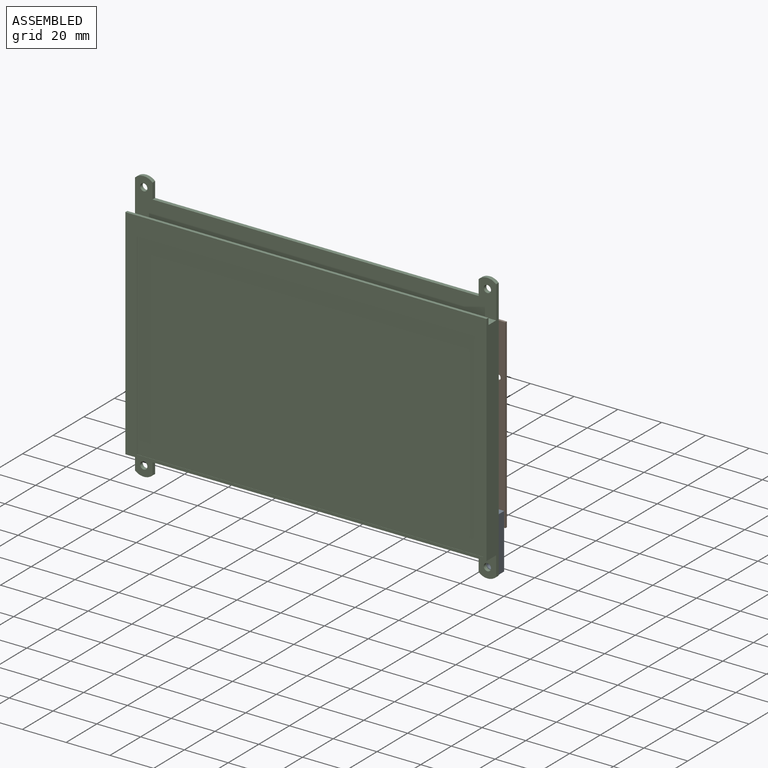
[diagram: assembled view]
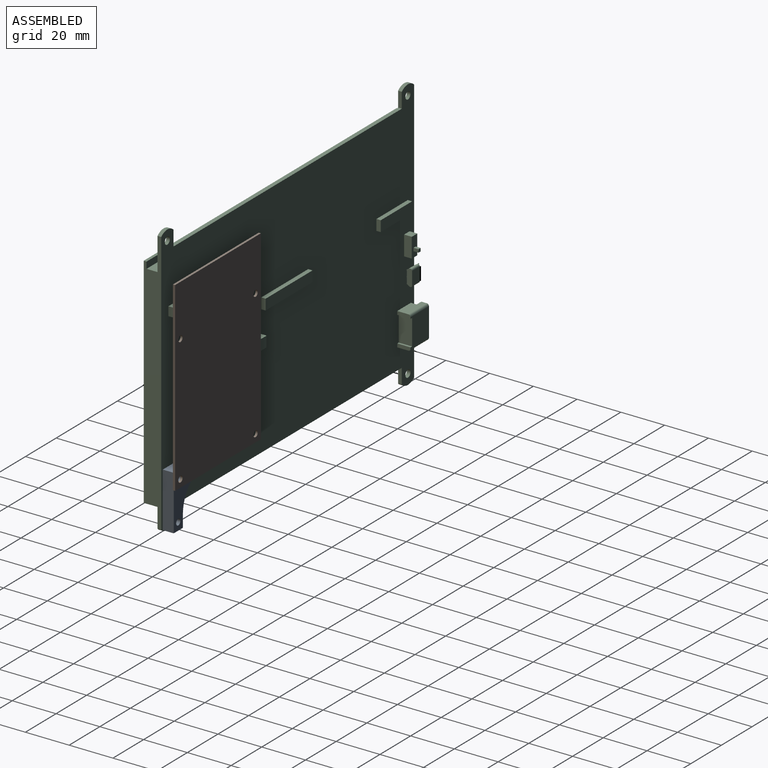
[diagram: assembled view, second angle]
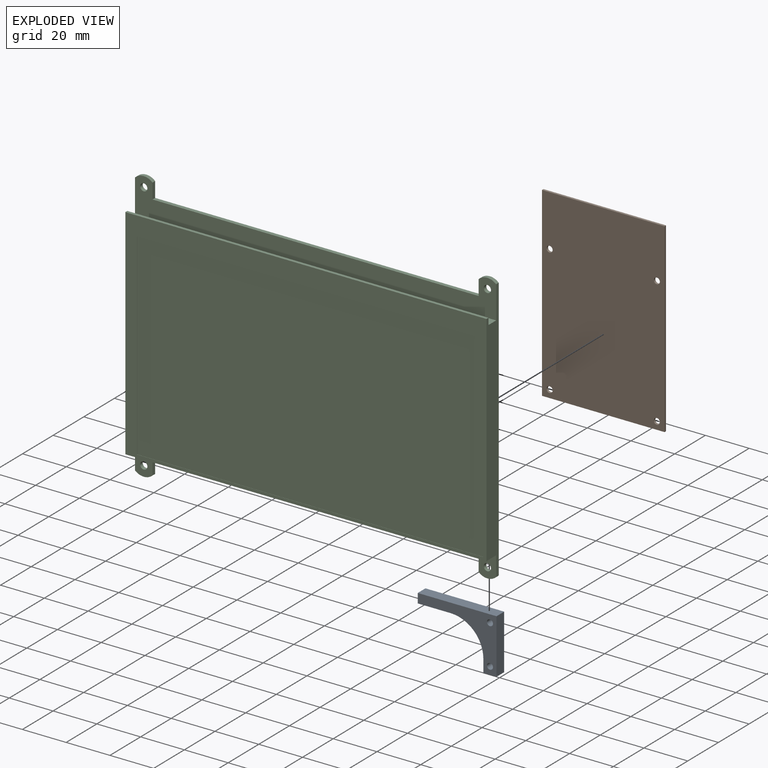
[diagram: exploded view]
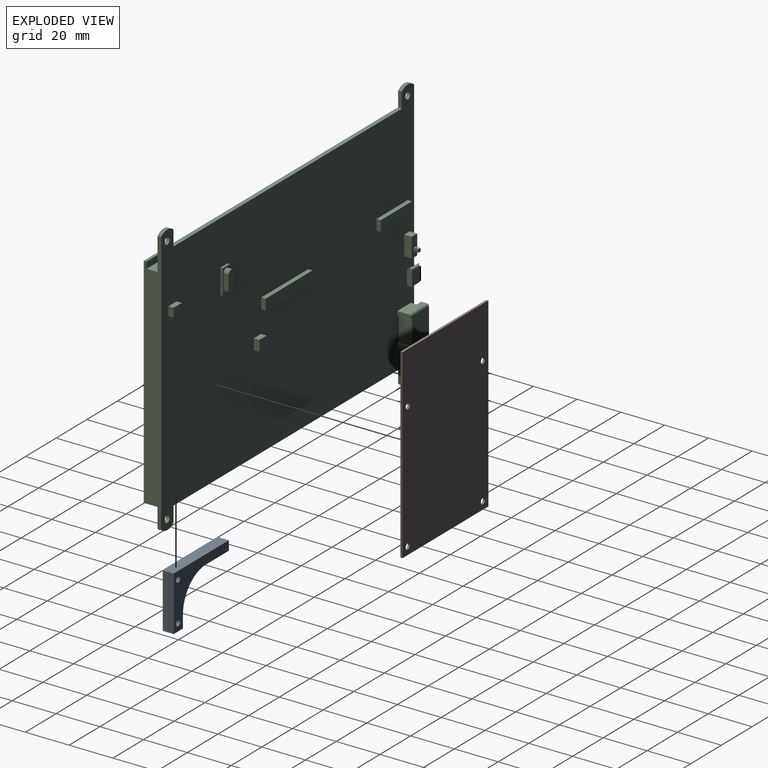
[diagram: exploded view, second angle]
ASSEMBLY  parts=3 mates=2
PART A: 11 faces, bbox 36x5x25 mm
  f0: plane 6x5mm, normal (0,0,-1), area 30mm2, adj f1,f5,f6,f7
  f1: plane 25x5mm, normal (1,0,0), area 125mm2, adj f0,f2,f6,f7
  f2: plane 36x5mm, normal (0,0,1), area 180mm2, adj f1,f6,f7,f9
  f3: cylinder r=1.38mm len=5mm, axis (0,1,0), area 43.2mm2, adj f6,f7
  f4: cylinder r=1.38mm len=5mm, axis (0,1,0), area 43.2mm2, adj f6,f7
  f5: plane 5.68x5mm, normal (-1,0,0), area 28.4mm2, adj f0,f6,f7,f10
  f6: plane 36x25mm, normal (0,-1,0), area 315.9mm2, adj f0,f1,f2,f3,f4,f5,f8,f9
  f7: plane 36x25mm, normal (0,1,0), area 315.9mm2, adj f0,f1,f2,f3,f4,f5,f8,f9
  f8: plane 15x5mm, normal (0,0,-1), area 75mm2, adj f6,f7,f9,f10
  f9: plane 5x4.32mm, normal (-1,0,0), area 21.6mm2, adj f2,f6,f7,f8
  f10: cylinder r=15mm len=15mm, axis (0,-1,0), area 117.8mm2, adj f5,f6,f7,f8
PART B: 10 faces, bbox 85x1x56 mm
  f0: plane 85x1mm, normal (0,0,-1), area 85mm2, adj f1,f3,f4,f5
  f1: plane 56x1mm, normal (1,0,0), area 56mm2, adj f0,f2,f4,f5
  f2: plane 85x1mm, normal (0,0,1), area 85mm2, adj f1,f3,f4,f5
  f3: plane 56x1mm, normal (-1,0,0), area 56mm2, adj f0,f2,f4,f5
  f4: plane 85x56mm, normal (0,1,0), area 4736.2mm2, adj f0,f1,f2,f3,f6,f7,f8,f9
  f5: plane 85x56mm, normal (0,-1,0), area 4736.2mm2, adj f0,f1,f2,f3,f6,f7,f8,f9
  f6: cylinder r=1.38mm len=2.75mm, axis (0,-1,0), area 8.6mm2, adj f4,f5
  f7: cylinder r=1.38mm len=2.75mm, axis (0,-1,0), area 8.6mm2, adj f4,f5
  f8: cylinder r=1.38mm len=2.75mm, axis (0,-1,0), area 8.6mm2, adj f4,f5
  f9: cylinder r=1.38mm len=2.75mm, axis (0,-1,0), area 8.6mm2, adj f4,f5
PART C: 205 faces, bbox 166x14.1x124.2 mm
  f0: plane 6x0.48mm, normal (-0.5,-0.86,0), area 3.4mm2, adj f1,f6,f7,f8
  f1: cylinder r=0.5mm len=6.01mm, axis (0,0,-1), area 1.6mm2, adj f0,f5,f6,f8,f12
  f2: plane 3.55x0.6mm, normal (-1,0,0), area 2.1mm2, adj f13,f14,f15,f16
  f3: plane 10x3.5mm, normal (0,1,0), area 32.4mm2, adj f20,f21,f22,f23
  f4: plane 1.4x1.4mm, normal (0,1,0), area 2mm2, adj f24,f25,f26,f27
  f5: plane 0.17x0.09mm, normal (0,-1,0), area 0mm2, adj f1,f11,f28
  f6: plane 0.61x0.54mm, normal (0,0,1), area 0.2mm2, adj f0,f1,f7,f28,f29
  f7: plane 6x0.19mm, normal (-0.86,0.5,0), area 1.3mm2, adj f0,f6,f8,f29
  f8: plane 0.61x0.54mm, normal (0,0,-1), area 0.2mm2, adj f0,f1,f7,f29,f30
  f9: plane 0.6x0.54mm, normal (0,1,0), area 0.2mm2, adj f28,f32,f33,f34
  f10: plane 4.5x0.22mm, normal (0,0,-1), area 1mm2, adj f11,f31,f32,f37
  f11: cylinder r=0.4mm len=4.5mm, axis (-1,0,0), area 2.9mm2, adj f5,f10,f12,f28,f32,f37
  f12: plane 6.14x4.54mm, normal (0,-1,0), area 26.6mm2, adj f1,f11,f17,f30,f37
  f13: plane 3.55x3.5mm, normal (0,1,0), area 12.4mm2, adj f2,f14,f16,f37
  f14: plane 3.5x0.6mm, normal (0,0,1), area 2.1mm2, adj f2,f13,f15,f37
  f15: plane 3.55x3.5mm, normal (0,-1,0), area 12.4mm2, adj f2,f14,f16,f37
  f16: plane 3.5x0.6mm, normal (0,0,-1), area 2.1mm2, adj f2,f13,f15,f37
  f17: cylinder r=0.4mm len=4.5mm, axis (-1,0,0), area 2.8mm2, adj f12,f30,f36,f37,f39
  f18: plane 0.6x0.54mm, normal (0,1,0), area 0.2mm2, adj f30,f38,f39,f40
  f19: plane 14.2x5.3mm, normal (-1,0,0), area 68.6mm2, adj f42,f43,f44,f45,f46,f47,f48,f49
  f20: cylinder r=1.75mm len=3.5mm, axis (0,-1,0), area 12.6mm2, adj f3,f21,f23,f71
  f21: plane 6.5x2.3mm, normal (-1,0,0), area 14.9mm2, adj f3,f20,f22,f71
  f22: cylinder r=1.75mm len=3.5mm, axis (0,1,0), area 12.6mm2, adj f3,f21,f23,f71
  f23: plane 6.5x2.3mm, normal (1,0,0), area 14.9mm2, adj f3,f20,f22,f71
  f24: plane 2.3x1.4mm, normal (0,0,-1), area 3.2mm2, adj f4,f25,f27,f75
  f25: plane 2.3x1.4mm, normal (1,0,0), area 3.2mm2, adj f4,f24,f26,f75
  f26: plane 2.3x1.4mm, normal (0,0,1), area 3.2mm2, adj f4,f25,f27,f75
  f27: plane 2.3x1.4mm, normal (-1,0,0), area 3.2mm2, adj f4,f24,f26,f75
  f28: plane 0.75x0.64mm, normal (-1,0,0), area 0.3mm2, adj f5,f6,f9,f11,f78,f79
  f29: plane 6x0.49mm, normal (0.45,0.89,0), area 3.3mm2, adj f6,f7,f8,f79
  f30: plane 0.75x0.64mm, normal (-1,0,0), area 0.2mm2, adj f8,f12,f17,f18,f79,f80
  f31: cylinder r=0.6mm len=4.5mm, axis (-1,0,0), area 1.6mm2, adj f10,f32,f37,f83,f188
  f32: plane 0.63x0.41mm, normal (-0.45,0,-0.89), area 0.3mm2, adj f9,f10,f11,f31,f34,f87
  f33: plane 0.5x0.41mm, normal (0.45,0,0.89), area 0.2mm2, adj f9,f34,f77,f78,f86,f87
  f34: plane 0.4x0.24mm, normal (-0.89,0,0.45), area 0.1mm2, adj f9,f32,f33,f87
  f35: plane 4.7x0.6mm, normal (-0.5,0.86,0), area 3.3mm2, adj f88,f89,f91,f92
  f36: plane 4.5x0.24mm, normal (0,0,1), area 1.1mm2, adj f17,f37,f39,f95
  f37: plane 6.9x1.86mm, normal (-1,0,0), area 9.8mm2, adj f10,f11,f12,f13,f14,f15,f16,f17
  f38: plane 0.5x0.41mm, normal (0.45,0,-0.89), area 0.2mm2, adj f18,f40,f80,f81,f90,f96
  f39: plane 0.62x0.41mm, normal (-0.45,0,0.89), area 0.3mm2, adj f17,f18,f36,f40,f95,f96
  f40: plane 0.4x0.24mm, normal (-0.89,0,-0.45), area 0.1mm2, adj f18,f38,f39,f96
  f41: plane 0.75x0.3mm, normal (0,-1,0), area 0.2mm2, adj f98,f99,f100,f101
  f42: plane 8.82x5mm, normal (0,1,0), area 44.1mm2, adj f19,f43,f57,f102
  f43: cylinder r=0.6mm len=5mm, axis (-1,0,0), area 2.7mm2, adj f19,f42,f44,f102
  f44: plane 5x1.22mm, normal (0,0.61,0.79), area 7.7mm2, adj f19,f43,f45,f102
  f45: cylinder r=1.4mm len=5mm, axis (-1,0,0), area 3.8mm2, adj f19,f44,f46,f102
  f46: plane 5x0.3mm, normal (0,0.93,0.37), area 1.6mm2, adj f19,f45,f47,f102
  f47: cylinder r=0.6mm len=5mm, axis (-1,0,0), area 3.6mm2, adj f19,f46,f48,f102
  f48: plane 5x2.12mm, normal (0,0,1), area 10.6mm2, adj f19,f47,f49,f102
  f49: cylinder r=0.6mm len=5mm, axis (-1,0,0), area 4.7mm2, adj f19,f48,f50,f102
  f50: plane 13x5mm, normal (0,-1,0), area 65mm2, adj f19,f49,f51,f102
  f51: cylinder r=0.6mm len=5mm, axis (-1,0,0), area 4.7mm2, adj f19,f50,f52,f102
  f52: plane 5x2.12mm, normal (0,0,-1), area 10.6mm2, adj f19,f51,f53,f102
  f53: cylinder r=0.6mm len=5mm, axis (-1,0,0), area 3.6mm2, adj f19,f52,f54,f102
  f54: plane 5x0.3mm, normal (0,0.93,-0.37), area 1.6mm2, adj f19,f53,f55,f102
  f55: cylinder r=1.4mm len=5mm, axis (-1,0,0), area 3.8mm2, adj f19,f54,f56,f102
  f56: plane 5x1.22mm, normal (0,0.61,-0.79), area 7.7mm2, adj f19,f55,f57,f102
  f57: cylinder r=0.6mm len=5mm, axis (-1,0,0), area 2.7mm2, adj f19,f42,f56,f102
  f58: plane 158x90mm, normal (0,-1,0), area 14220mm2, adj f103,f104,f105,f106
  f59: plane 3.1x0.3mm, normal (0,-0.93,0.37), area 1mm2, adj f61,f62,f102,f108
  f60: plane 3.1x1.22mm, normal (0,-0.61,0.79), area 4.8mm2, adj f61,f102,f107,f108
  f61: cylinder r=1mm len=3.1mm, axis (-1,0,0), area 1.7mm2, adj f59,f60,f102,f108
  f62: cylinder r=1mm len=3.1mm, axis (1,0,0), area 3.7mm2, adj f59,f102,f108,f109
  f63: cylinder r=1mm len=12mm, axis (1,0,0), area 18.8mm2, adj f64,f102,f109,f110
  f64: plane 13x12mm, normal (0,1,0), area 144.2mm2, adj f63,f65,f102,f110,f111,f112,f113,f114
  f65: cylinder r=1mm len=12mm, axis (-1,0,0), area 18.8mm2, adj f64,f102,f114,f115
  f66: cylinder r=1mm len=3.1mm, axis (-1,0,0), area 3.7mm2, adj f67,f102,f115,f116
  f67: plane 3.1x0.3mm, normal (0,-0.93,-0.37), area 1mm2, adj f66,f68,f102,f116
  f68: cylinder r=1mm len=3.1mm, axis (-1,0,0), area 1.7mm2, adj f67,f69,f102,f116
  f69: plane 3.1x1.22mm, normal (0,-0.61,-0.79), area 4.8mm2, adj f68,f102,f116,f117
  f70: plane 5.3x4.1mm, normal (0,1,0), area 21.7mm2, adj f134,f135,f136,f137
  f71: plane 11.4x4.6mm, normal (0,1,0), area 20.1mm2, adj f20,f21,f22,f23,f138,f139,f140,f141
  f72: plane 4.9x4.7mm, normal (0,1,0), area 23mm2, adj f142,f143,f144,f145
  f73: plane 30.6x4.9mm, normal (0,1,0), area 149.9mm2, adj f146,f147,f148,f149
  f74: plane 20.5x4.9mm, normal (0,1,0), area 100.4mm2, adj f150,f151,f152,f153
  f75: plane 9x3.6mm, normal (0,1,0), area 30.4mm2, adj f24,f25,f26,f27,f154,f155,f156,f157
  f76: plane 1.2x0.1mm, normal (0,0,1), area 0.1mm2, adj f82,f127,f179,f191,f202
  f77: plane 5x0.22mm, normal (0,0,1), area 1.1mm2, adj f33,f78,f86,f179
  f78: cylinder r=0.7mm len=5mm, axis (-1,0,0), area 5.5mm2, adj f28,f33,f77,f79,f179
  f79: plane 6.1x5mm, normal (0,1,0), area 30.5mm2, adj f28,f29,f30,f78,f80,f179
  f80: cylinder r=0.7mm len=5mm, axis (-1,0,0), area 5.5mm2, adj f30,f38,f79,f81,f179
  f81: plane 5x0.24mm, normal (0,0,-1), area 1.2mm2, adj f38,f80,f90,f179
  f82: plane 4.8x1.2mm, normal (0,-1,0), area 4.8mm2, adj f76,f127,f158,f159,f160,f161,f162,f163
  f83: plane 4.5x0.64mm, normal (0,0.56,-0.83), area 3.5mm2, adj f31,f37,f84,f188
  f84: cylinder r=0.6mm len=4.5mm, axis (-1,0,0), area 2.6mm2, adj f37,f83,f92,f188
  f85: plane 5x0.64mm, normal (0,-0.56,0.83), area 3.8mm2, adj f86,f179,f187,f188
  f86: cylinder r=0.9mm len=5mm, axis (-1,0,0), area 2.7mm2, adj f33,f77,f85,f179,f188
  f87: plane 0.6x0.55mm, normal (0,-1,0), area 0.2mm2, adj f32,f33,f34,f188
  f88: plane 4.7x0.2mm, normal (-0.86,-0.5,0), area 1.1mm2, adj f35,f89,f91,f189
  f89: plane 0.6x0.55mm, normal (0,0,1), area 0.2mm2, adj f35,f88,f188,f189
  f90: cylinder r=0.9mm len=5mm, axis (-1,0,0), area 2.7mm2, adj f38,f81,f97,f179,f190
  f91: plane 0.6x0.55mm, normal (0,0,-1), area 0.2mm2, adj f35,f88,f189,f190
  f92: plane 4.86x4.5mm, normal (0,1,0), area 21.8mm2, adj f35,f37,f84,f93,f188,f190
  f93: cylinder r=0.6mm len=4.5mm, axis (-1,0,0), area 2.6mm2, adj f37,f92,f94,f190
  f94: plane 4.5x0.62mm, normal (0,0.56,0.83), area 3.3mm2, adj f37,f93,f95,f190
  f95: cylinder r=0.6mm len=4.5mm, axis (-1,0,0), area 1.6mm2, adj f36,f37,f39,f94,f190
  f96: plane 0.61x0.55mm, normal (0,-1,0), area 0.2mm2, adj f38,f39,f40,f190
  f97: plane 5x0.62mm, normal (0,-0.56,-0.83), area 3.7mm2, adj f90,f179,f190,f191
  f98: plane 0.75x0.72mm, normal (0,0,1), area 0.5mm2, adj f41,f99,f101,f191
  f99: plane 0.85x0.3mm, normal (1,0,0), area 0.2mm2, adj f41,f98,f100,f191
  f100: plane 0.85x0.75mm, normal (0,0,-1), area 0.6mm2, adj f41,f99,f101,f191
  f101: plane 0.85x0.3mm, normal (-1,0,0), area 0.2mm2, adj f41,f98,f100,f191
  f102: plane 15x6.1mm, normal (-1,0,0), area 14.8mm2, adj f42,f43,f44,f45,f46,f47,f48,f49
  f103: plane 90x0.1mm, normal (1,0,0), area 9mm2, adj f58,f104,f106,f196
  f104: plane 158x0.1mm, normal (0,0,-1), area 15.8mm2, adj f58,f103,f105,f196
  f105: plane 90x0.1mm, normal (-1,0,0), area 9mm2, adj f58,f104,f106,f196
  f106: plane 158x0.1mm, normal (0,0,1), area 15.8mm2, adj f58,f103,f105,f196
  f107: cylinder r=1mm len=3.1mm, axis (-1,0,0), area 2.8mm2, adj f60,f102,f108,f192,f202
  f108: plane 3.09x2.98mm, normal (-1,0,0), area 3.9mm2, adj f59,f60,f61,f62,f107,f109,f202
  f109: plane 12x5.1mm, normal (0,0,1), area 52mm2, adj f62,f63,f102,f108,f110,f202
  f110: plane 6.1x1.6mm, normal (1,0,0), area 9.5mm2, adj f63,f64,f109,f111,f202
  f111: plane 6.1x1mm, normal (0,0,-1), area 6.1mm2, adj f64,f110,f112,f202
  f112: plane 11.8x6.1mm, normal (1,0,0), area 72mm2, adj f64,f111,f113,f202
  f113: plane 6.1x1mm, normal (0,0,1), area 6.1mm2, adj f64,f112,f114,f202
  f114: plane 6.1x1.6mm, normal (1,0,0), area 9.5mm2, adj f64,f65,f113,f115,f202
  f115: plane 12x5.1mm, normal (0,0,-1), area 52mm2, adj f65,f66,f102,f114,f116,f202
  f116: plane 3.09x2.98mm, normal (-1,0,0), area 3.9mm2, adj f66,f67,f68,f69,f115,f117,f202
  f117: cylinder r=1mm len=3.1mm, axis (-1,0,0), area 2.8mm2, adj f69,f102,f116,f192,f202
  f118: plane 6.98x1.7mm, normal (1,0,0), area 11.9mm2, adj f119,f193,f194,f202
  f119: plane 149x1.7mm, normal (0,0,-1), area 253.3mm2, adj f118,f120,f194,f202
  f120: plane 6.98x1.7mm, normal (-1,0,0), area 11.9mm2, adj f119,f121,f194,f202
  f121: cylinder r=5.8mm len=8mm, axis (0,-1,0), area 15mm2, adj f120,f122,f194,f202
  f122: plane 120.95x8mm, normal (1,0,0), area 820.6mm2, adj f121,f123,f194,f195,f196,f197,f198,f199
  f123: cylinder r=5.8mm len=8mm, axis (0,1,0), area 15mm2, adj f122,f124,f200,f202
  f124: plane 6.98x1.7mm, normal (-1,0,0), area 11.9mm2, adj f123,f125,f200,f202
  f125: plane 149x1.7mm, normal (0,0,1), area 253.3mm2, adj f124,f126,f200,f202
  f126: plane 6.98x1.7mm, normal (1,0,0), area 11.9mm2, adj f125,f200,f201,f202
  f127: plane 4.82x0.1mm, normal (1,0,0), area 0.5mm2, adj f76,f82,f180,f202
  f128: plane 0.58x0.2mm, normal (-1,0,0), area 0mm2, adj f129,f191,f202
  f129: plane 0.3x0.2mm, normal (0,0,-1), area 0.1mm2, adj f128,f179,f191,f202
  f130: cylinder r=1.65mm len=3.3mm, axis (0,-1,0), area 17.6mm2, adj f200,f202
  f131: cylinder r=1.65mm len=3.3mm, axis (0,1,0), area 17.6mm2, adj f200,f202
  f132: cylinder r=1.65mm len=3.3mm, axis (0,-1,0), area 17.6mm2, adj f194,f202
  f133: cylinder r=1.65mm len=3.3mm, axis (0,1,0), area 17.6mm2, adj f194,f202
  f134: plane 4.1x2.4mm, normal (-1,0,0), area 9.8mm2, adj f70,f135,f137,f202
  f135: plane 5.3x2.4mm, normal (0,0,1), area 12.7mm2, adj f70,f134,f136,f202
  f136: plane 4.1x2.4mm, normal (1,0,0), area 9.8mm2, adj f70,f135,f137,f202
  f137: plane 5.3x2.4mm, normal (0,0,-1), area 12.7mm2, adj f70,f134,f136,f202
  f138: plane 11.4x1.1mm, normal (-1,0,0), area 12.5mm2, adj f71,f139,f141,f202
  f139: plane 4.6x1.1mm, normal (0,0,1), area 5.1mm2, adj f71,f138,f140,f202
  f140: plane 11.4x1.1mm, normal (1,0,0), area 12.5mm2, adj f71,f139,f141,f202
  f141: plane 4.6x1.1mm, normal (0,0,-1), area 5.1mm2, adj f71,f138,f140,f202
  f142: plane 4.9x2.6mm, normal (-1,0,0), area 12.7mm2, adj f72,f143,f145,f202
  f143: plane 4.7x2.6mm, normal (0,0,1), area 12.2mm2, adj f72,f142,f144,f202
  f144: plane 4.9x2.6mm, normal (1,0,0), area 12.7mm2, adj f72,f143,f145,f202
  f145: plane 4.7x2.6mm, normal (0,0,-1), area 12.2mm2, adj f72,f142,f144,f202
  f146: plane 4.9x2mm, normal (-1,0,0), area 9.8mm2, adj f73,f147,f149,f202
  f147: plane 30.6x2mm, normal (0,0,1), area 61.2mm2, adj f73,f146,f148,f202
  f148: plane 4.9x2mm, normal (1,0,0), area 9.8mm2, adj f73,f147,f149,f202
  f149: plane 30.6x2mm, normal (0,0,-1), area 61.2mm2, adj f73,f146,f148,f202
  f150: plane 4.9x2mm, normal (-1,0,0), area 9.8mm2, adj f74,f151,f153,f202
  f151: plane 20.5x2mm, normal (0,0,1), area 41mm2, adj f74,f150,f152,f202
  f152: plane 4.9x2mm, normal (1,0,0), area 9.8mm2, adj f74,f151,f153,f202
  f153: plane 20.5x2mm, normal (0,0,-1), area 41mm2, adj f74,f150,f152,f202
  f154: plane 9x3.5mm, normal (-1,0,0), area 31.5mm2, adj f75,f155,f157,f202
  f155: plane 3.6x3.5mm, normal (0,0,1), area 12.6mm2, adj f75,f154,f156,f202
  f156: plane 9x3.5mm, normal (1,0,0), area 31.5mm2, adj f75,f155,f157,f202
  f157: plane 3.6x3.5mm, normal (0,0,-1), area 12.6mm2, adj f75,f154,f156,f202
  f158: plane 0.7x0.1mm, normal (0,0,-1), area 0.1mm2, adj f82,f159,f179,f202
  f159: plane 0.2x0.1mm, normal (-1,0,0), area 0mm2, adj f82,f158,f160,f202
  f160: plane 0.7x0.1mm, normal (0,0,1), area 0.1mm2, adj f82,f159,f179,f202
  f161: plane 0.7x0.1mm, normal (0,0,-1), area 0.1mm2, adj f82,f162,f179,f202
  f162: plane 0.2x0.1mm, normal (-1,0,0), area 0mm2, adj f82,f161,f163,f202
  f163: plane 0.7x0.1mm, normal (0,0,1), area 0.1mm2, adj f82,f162,f179,f202
  f164: plane 0.7x0.1mm, normal (0,0,-1), area 0.1mm2, adj f82,f165,f179,f202
  f165: plane 0.2x0.1mm, normal (-1,0,0), area 0mm2, adj f82,f164,f166,f202
  f166: plane 0.7x0.1mm, normal (0,0,1), area 0.1mm2, adj f82,f165,f179,f202
  f167: plane 0.7x0.1mm, normal (0,0,-1), area 0.1mm2, adj f82,f168,f179,f202
  f168: plane 0.2x0.1mm, normal (-1,0,0), area 0mm2, adj f82,f167,f169,f202
  f169: plane 0.7x0.1mm, normal (0,0,1), area 0.1mm2, adj f82,f168,f179,f202
  f170: plane 0.7x0.1mm, normal (0,0,-1), area 0.1mm2, adj f82,f171,f179,f202
  f171: plane 0.2x0.1mm, normal (-1,0,0), area 0mm2, adj f82,f170,f172,f202
  f172: plane 0.7x0.1mm, normal (0,0,1), area 0.1mm2, adj f82,f171,f179,f202
  f173: plane 0.7x0.1mm, normal (0,0,-1), area 0.1mm2, adj f82,f174,f179,f202
  f174: plane 0.2x0.1mm, normal (-1,0,0), area 0mm2, adj f82,f173,f175,f202
  f175: plane 0.7x0.1mm, normal (0,0,1), area 0.1mm2, adj f82,f174,f179,f202
  f176: plane 0.7x0.1mm, normal (0,0,-1), area 0.1mm2, adj f82,f177,f179,f202
  f177: plane 0.2x0.1mm, normal (-1,0,0), area 0mm2, adj f82,f176,f178,f202
  f178: plane 0.7x0.1mm, normal (0,0,1), area 0.1mm2, adj f82,f177,f179,f202
  f179: plane 7.5x2.46mm, normal (1,0,0), area 16.8mm2, adj f76,f77,f78,f79,f80,f81,f82,f85
  f180: plane 1.2x0.1mm, normal (0,0,-1), area 0.1mm2, adj f82,f127,f179,f187,f202
  f181: plane 0.59x0.21mm, normal (-1,0,0), area 0mm2, adj f182,f187,f202
  f182: plane 0.3x0.21mm, normal (0,0,1), area 0.1mm2, adj f179,f181,f187,f202
  f183: plane 0.75x0.02mm, normal (0,0,-1), area 0mm2, adj f184,f186,f187,f202
  f184: plane 0.3x0.15mm, normal (-1,0,0), area 0mm2, adj f183,f185,f187,f202
  f185: plane 0.75x0.15mm, normal (0,0,1), area 0.1mm2, adj f184,f186,f187,f202
  f186: plane 0.3x0.15mm, normal (1,0,0), area 0mm2, adj f183,f185,f187,f202
  f187: cylinder r=0.9mm len=5mm, axis (-1,0,0), area 4mm2, adj f85,f179,f180,f181,f182,f183,f184,f185
  f188: plane 1.42x1.39mm, normal (-1,0,0), area 0.6mm2, adj f31,f83,f84,f85,f86,f87,f89,f92
  f189: plane 4.7x0.48mm, normal (0.46,-0.89,0), area 2.6mm2, adj f88,f89,f91,f203
  f190: plane 1.42x1.4mm, normal (-1,0,0), area 0.6mm2, adj f90,f91,f92,f93,f94,f95,f96,f97
  f191: cylinder r=0.9mm len=5mm, axis (-1,0,0), area 4mm2, adj f76,f97,f98,f99,f100,f101,f128,f129
  f192: plane 8.82x1mm, normal (0,-1,0), area 8.8mm2, adj f102,f107,f117,f204
  f193: cylinder r=5.8mm len=8mm, axis (0,1,0), area 15mm2, adj f118,f194,f202,f204
  f194: plane 165x10.63mm, normal (0,-1,0), area 450.4mm2, adj f118,f119,f120,f121,f122,f132,f133,f193
  f195: plane 165x6.3mm, normal (0,0,-1), area 1039.5mm2, adj f122,f194,f196,f204
  f196: plane 165x100mm, normal (0,-1,0), area 2280mm2, adj f103,f104,f105,f106,f122,f195,f197,f204
  f197: plane 165x1.3mm, normal (0,0,1), area 214.5mm2, adj f122,f196,f198,f204
  f198: plane 165x3mm, normal (0,1,0), area 495mm2, adj f122,f197,f199,f204
  f199: plane 165x5mm, normal (0,0,1), area 825mm2, adj f122,f198,f200,f204
  f200: plane 165x16.53mm, normal (0,-1,0), area 1423.9mm2, adj f122,f123,f124,f125,f126,f130,f131,f199
  f201: cylinder r=5.8mm len=8mm, axis (0,-1,0), area 15mm2, adj f126,f200,f202,f204
  f202: plane 165x124.15mm, normal (0,1,0), area 17340mm2, adj f76,f107,f108,f109,f110,f111,f112,f113
  f203: plane 4.86x0.2mm, normal (0,-1,0), area 1mm2, adj f187,f188,f189,f190,f191,f204
  f204: plane 120.95x8mm, normal (-1,0,0), area 820.6mm2, adj f192,f193,f194,f195,f196,f197,f198,f199
PLACE A t=(79.48,-20.5,-47.02)mm
PLACE B rot(axis=(0,-1,0),90deg) t=(54.98,-20.5,0.98)mm
PLACE C t=(0.98,-30.1,1.43)mm
MATE fastened A.f3 <-> C.f132  axis (0,-1,0) through (79.48,-25.5,-56.02)mm
MATE fastened A.f4 <-> B.f6  axis (0,1,0) through (79.48,-20.5,-38.02)mm
